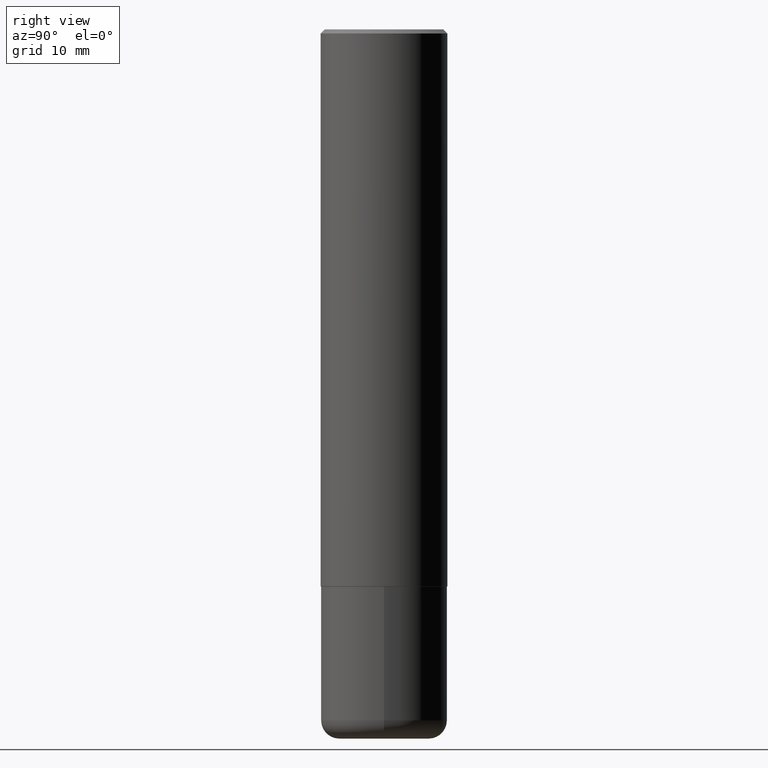
[diagram: clean part render]
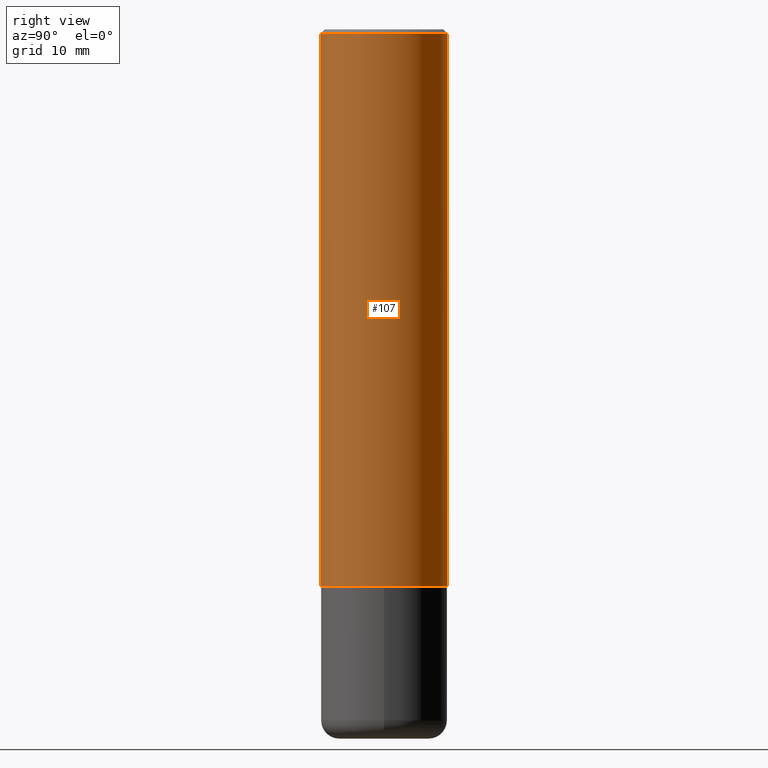
[diagram: same view with one face highlighted and labeled with its STEP entity id]
A machine part, right view. The second image highlights one B-rep face of the part: STEP entity #107.
In plain terms, the highlighted cylindrical surface (partial cylindrical patch) has radius 7.9375 mm, axis along (-0, 0, 1).
Its self-contained STEP definition (entity closure, byte-faithful):
#2 = CYLINDRICAL_SURFACE ( 'NONE', #130, 0.3125000000000001665 ) ;
#5 = EDGE_CURVE ( 'NONE', #210, #52, #221, .T. ) ;
#11 = CARTESIAN_POINT ( 'NONE',  ( -2.182175836776959136E-15, -0.3125000000000001665, 1.091221009240800684E-15 ) ) ;
#20 = ORIENTED_EDGE ( 'NONE', *, *, #5, .F. ) ;
#33 = LINE ( 'NONE', #11, #141 ) ;
#42 = VECTOR ( 'NONE', #274, 39.37007874015748143 ) ;
#52 = VERTEX_POINT ( 'NONE', #295 ) ;
#65 = CARTESIAN_POINT ( 'NONE',  ( 6.721776201360911132E-29, -9.599252974089470899E-15, -2.749000000000000110 ) ) ;
#90 = DIRECTION ( 'NONE',  ( -2.445171408279705303E-29, 3.491907229570560770E-15, 1.000000000000000000 ) ) ;
#107 = ADVANCED_FACE ( 'NONE', ( #125 ), #2, .T. ) ;
#125 = FACE_OUTER_BOUND ( 'NONE', #408, .T. ) ;
#130 = AXIS2_PLACEMENT_3D ( 'NONE', #325, #251, #317 ) ;
#133 = CARTESIAN_POINT ( 'NONE',  ( 2.220446049250348185E-15, 0.3124999999999906741, -2.749000000000000998 ) ) ;
#136 = LINE ( 'NONE', #367, #42 ) ;
#141 = VECTOR ( 'NONE', #270, 39.37007874015748143 ) ;
#150 = ORIENTED_EDGE ( 'NONE', *, *, #223, .F. ) ;
#152 = CIRCLE ( 'NONE', #202, 0.3125000000000002776 ) ;
#175 = ORIENTED_EDGE ( 'NONE', *, *, #377, .T. ) ;
#179 = EDGE_CURVE ( 'NONE', #277, #52, #136, .T. ) ;
#192 = DIRECTION ( 'NONE',  ( -6.982962677686265922E-15, -1.000000000000000000, 3.496765431890253764E-15 ) ) ;
#199 = CARTESIAN_POINT ( 'NONE',  ( -2.143905624303603219E-15, -0.3125000000000001665, -0.01999999999999900469 ) ) ;
#202 = AXIS2_PLACEMENT_3D ( 'NONE', #65, #258, #192 ) ;
#205 = VERTEX_POINT ( 'NONE', #303 ) ;
#210 = VERTEX_POINT ( 'NONE', #199 ) ;
#218 = DIRECTION ( 'NONE',  ( -6.982962677686266711E-15, -1.000000000000000000, 3.496765431890256131E-15 ) ) ;
#221 = CIRCLE ( 'NONE', #290, 0.3125000000000000555 ) ;
#223 = EDGE_CURVE ( 'NONE', #205, #210, #33, .T. ) ;
#251 = DIRECTION ( 'NONE',  ( -2.445171408279705303E-29, 3.491907229570560770E-15, 1.000000000000000000 ) ) ;
#258 = DIRECTION ( 'NONE',  ( -2.445171408279705303E-29, 3.491907229570560770E-15, 1.000000000000000000 ) ) ;
#270 = DIRECTION ( 'NONE',  ( -2.445171408279705303E-29, 3.491907229570560770E-15, 1.000000000000000000 ) ) ;
#274 = DIRECTION ( 'NONE',  ( -2.445171408279705303E-29, 3.491907229570560770E-15, 1.000000000000000000 ) ) ;
#277 = VERTEX_POINT ( 'NONE', #133 ) ;
#290 = AXIS2_PLACEMENT_3D ( 'NONE', #319, #90, #218 ) ;
#295 = CARTESIAN_POINT ( 'NONE',  ( 2.182175836776959136E-15, 0.3125000000000000000, -0.02000000000000119044 ) ) ;
#303 = CARTESIAN_POINT ( 'NONE',  ( -2.182175836776892872E-15, -0.3125000000000099365, -2.748999999999999222 ) ) ;
#317 = DIRECTION ( 'NONE',  ( -6.982962677686265133E-15, -1.000000000000000000, 3.491907229570560376E-15 ) ) ;
#319 = CARTESIAN_POINT ( 'NONE',  ( 4.890342816559434953E-31, -6.983814459141154574E-17, -0.02000000000000009756 ) ) ;
#325 = CARTESIAN_POINT ( 'NONE',  ( 0.000000000000000000, 0.000000000000000000, 0.000000000000000000 ) ) ;
#367 = CARTESIAN_POINT ( 'NONE',  ( 2.220446049250313475E-15, 0.3125000000000001665, -1.091221009240800684E-15 ) ) ;
#368 = ORIENTED_EDGE ( 'NONE', *, *, #179, .T. ) ;
#377 = EDGE_CURVE ( 'NONE', #205, #277, #152, .T. ) ;
#408 = EDGE_LOOP ( 'NONE', ( #175, #368, #20, #150 ) ) ;